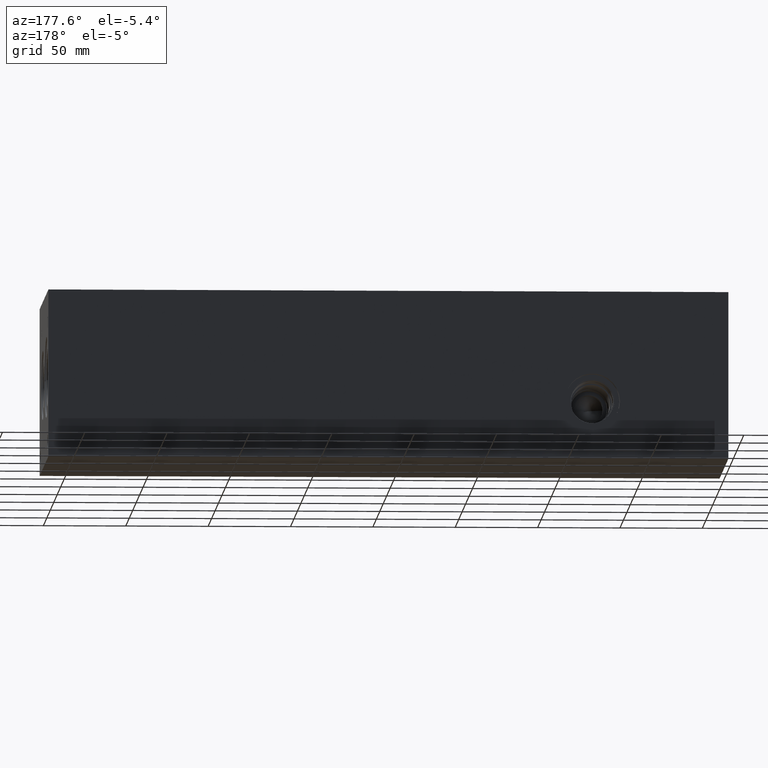
[diagram: clean part render]
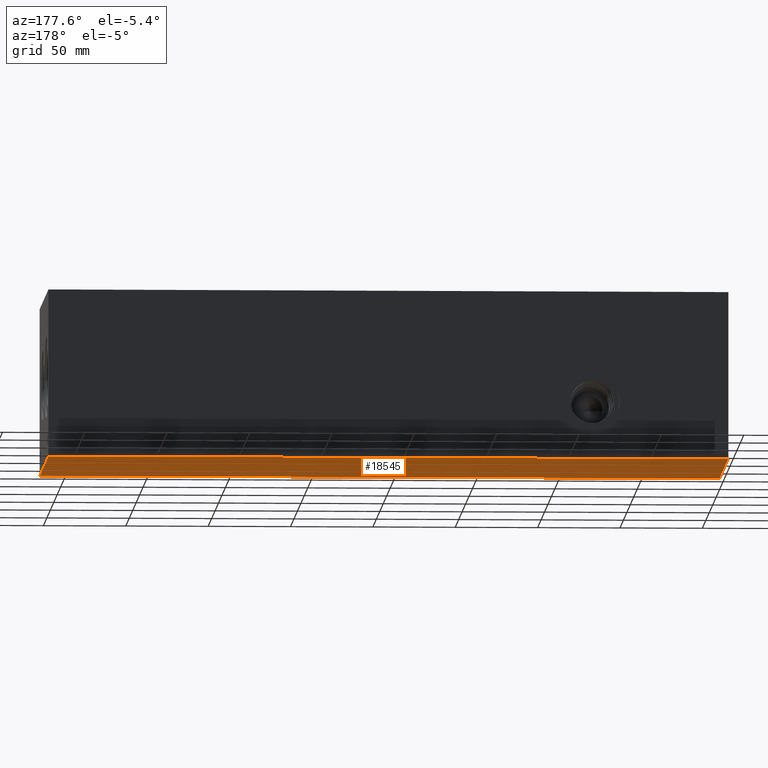
[diagram: same view with one face highlighted and labeled with its STEP entity id]
A machine part, auxiliary view. The second image highlights one B-rep face of the part: STEP entity #18545.
In plain terms, the highlighted planar face has unit normal (0, 0, 1).
Its self-contained STEP definition (entity closure, byte-faithful):
#2661=FACE_OUTER_BOUND('',#3808,.T.);
#3808=EDGE_LOOP('',(#16474,#16475,#16476,#16477));
#3842=LINE('',#24122,#5407);
#4301=LINE('',#26563,#5866);
#4360=LINE('',#26835,#5925);
#5372=LINE('',#32315,#6937);
#5407=VECTOR('',#19929,10.);
#5866=VECTOR('',#20582,10.);
#5925=VECTOR('',#20695,10.);
#6937=VECTOR('',#24041,10.);
#6961=VERTEX_POINT('',#24120);
#6962=VERTEX_POINT('',#24121);
#7555=VERTEX_POINT('',#26562);
#7613=VERTEX_POINT('',#26834);
#8768=EDGE_CURVE('',#6961,#6962,#3842,.T.);
#9472=EDGE_CURVE('',#6962,#7555,#4301,.T.);
#9555=EDGE_CURVE('',#7613,#6961,#4360,.T.);
#11314=EDGE_CURVE('',#7555,#7613,#5372,.T.);
#16474=ORIENTED_EDGE('',*,*,#8768,.F.);
#16475=ORIENTED_EDGE('',*,*,#9555,.F.);
#16476=ORIENTED_EDGE('',*,*,#11314,.F.);
#16477=ORIENTED_EDGE('',*,*,#9472,.F.);
#16959=PLANE('',#19867);
#18545=ADVANCED_FACE('',(#2661),#16959,.F.);
#19867=AXIS2_PLACEMENT_3D('',#32320,#24049,#24050);
#19929=DIRECTION('',(1.,0.,0.));
#20582=DIRECTION('',(0.,1.,0.));
#20695=DIRECTION('',(0.,-1.,0.));
#24041=DIRECTION('',(-1.,0.,0.));
#24049=DIRECTION('center_axis',(0.,0.,1.));
#24050=DIRECTION('ref_axis',(1.,0.,0.));
#24120=CARTESIAN_POINT('',(0.,0.,0.));
#24121=CARTESIAN_POINT('',(412.75,0.,0.));
#24122=CARTESIAN_POINT('',(0.,0.,0.));
#26562=CARTESIAN_POINT('',(412.75,127.,0.));
#26563=CARTESIAN_POINT('',(412.75,0.,0.));
#26834=CARTESIAN_POINT('',(0.,127.,0.));
#26835=CARTESIAN_POINT('',(0.,127.,0.));
#32315=CARTESIAN_POINT('',(412.75,127.,0.));
#32320=CARTESIAN_POINT('Origin',(206.375,63.5,0.));